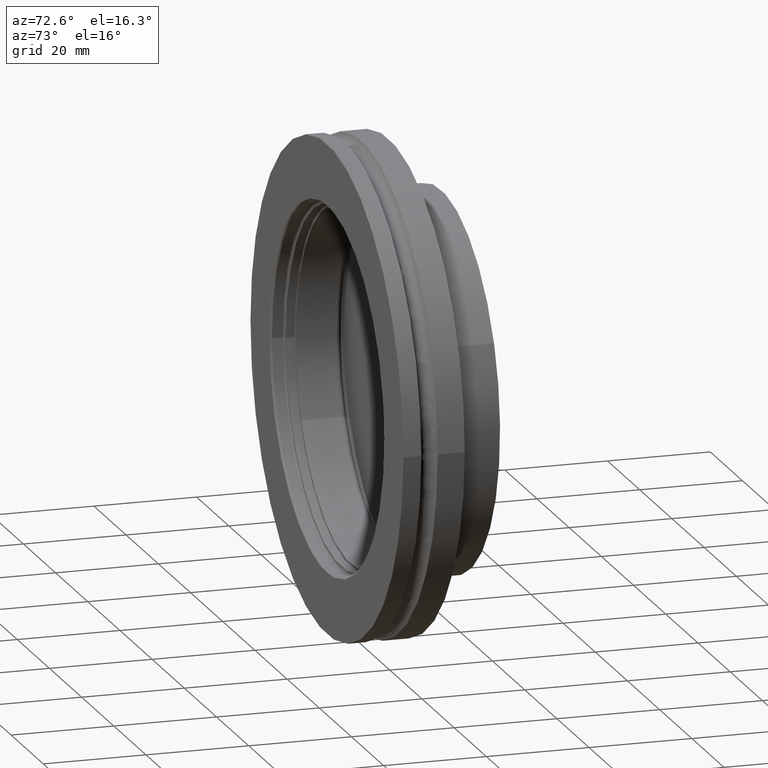
[diagram: clean part render]
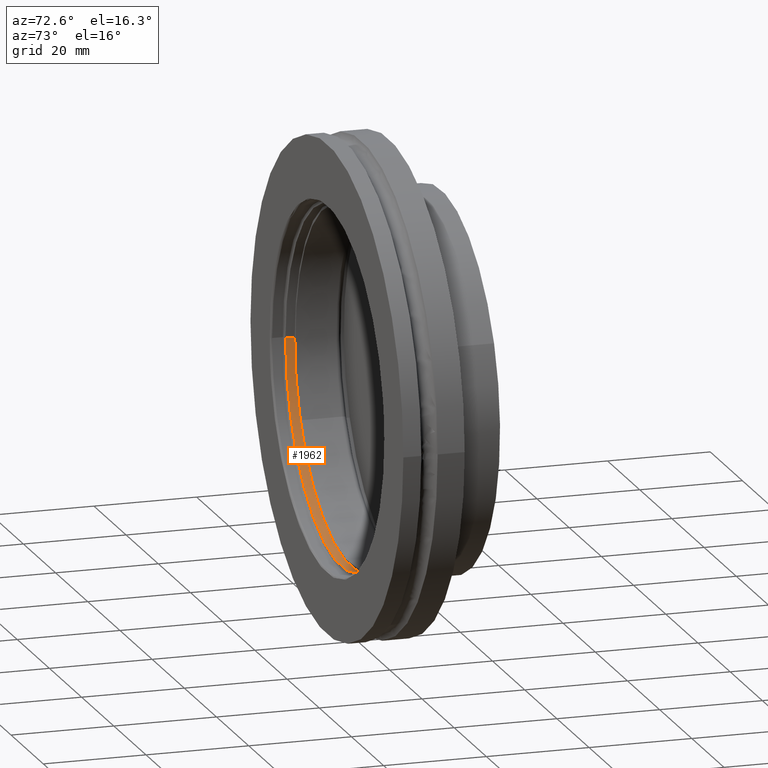
[diagram: same view with one face highlighted and labeled with its STEP entity id]
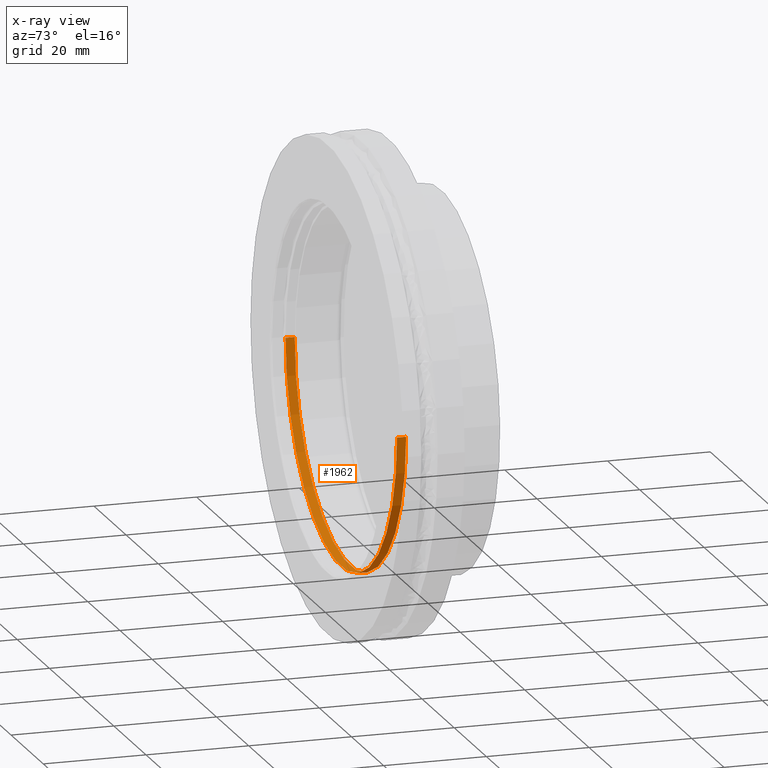
[diagram: x-ray of the same camera — body ghosted, the highlighted face saturated]
A machine part, auxiliary view. The second image highlights one B-rep face of the part: STEP entity #1962.
The next image is the same camera in x-ray: the body ghosted, the highlighted face saturated — about 1% of this face is hidden behind the body in this view.
In plain terms, the highlighted cylindrical surface (partial cylindrical patch) has radius 34.6075 mm, axis along (-0, -1, 0).
Its self-contained STEP definition (entity closure, byte-faithful):
#34 = AXIS2_PLACEMENT_3D ( 'NONE', #1231, #1247, #1248 ) ;
#64 = CYLINDRICAL_SURFACE ( 'NONE', #34, 1.362500000000000000 ) ;
#65 = FACE_OUTER_BOUND ( 'NONE', #500, .T. ) ;
#113 = VERTEX_POINT ( 'NONE', #859 ) ;
#157 = CIRCLE ( 'NONE', #585, 1.362500000000000000 ) ;
#215 = VECTOR ( 'NONE', #1512, 39.37007874015748100 ) ;
#217 = LINE ( 'NONE', #1505, #215 ) ;
#218 = VECTOR ( 'NONE', #1642, 39.37007874015748100 ) ;
#220 = LINE ( 'NONE', #1647, #218 ) ;
#266 = CIRCLE ( 'NONE', #651, 1.362500000000000000 ) ;
#407 = ORIENTED_EDGE ( 'NONE', *, *, #705, .F. ) ;
#408 = ORIENTED_EDGE ( 'NONE', *, *, #641, .F. ) ;
#409 = ORIENTED_EDGE ( 'NONE', *, *, #707, .T. ) ;
#410 = ORIENTED_EDGE ( 'NONE', *, *, #750, .T. ) ;
#500 = EDGE_LOOP ( 'NONE', ( #407, #408, #409, #410 ) ) ;
#585 = AXIS2_PLACEMENT_3D ( 'NONE', #1881, #1880, #1879 ) ;
#641 = EDGE_CURVE ( 'NONE', #113, #2005, #266, .T. ) ;
#651 = AXIS2_PLACEMENT_3D ( 'NONE', #789, #788, #787 ) ;
#705 = EDGE_CURVE ( 'NONE', #2005, #2012, #220, .T. ) ;
#707 = EDGE_CURVE ( 'NONE', #113, #1998, #217, .T. ) ;
#750 = EDGE_CURVE ( 'NONE', #1998, #2012, #157, .T. ) ;
#787 = DIRECTION ( 'NONE',  ( -1.000000000000000000, 1.253141281497368300E-016, 0.0000000000000000000 ) ) ;
#788 = DIRECTION ( 'NONE',  ( -1.224646799147352200E-016, -1.000000000000000000, 0.0000000000000000000 ) ) ;
#789 = CARTESIAN_POINT ( 'NONE',  ( -6.735557395310074900E-018, -0.05499999999999703700, -0.0000000000000000000 ) ) ;
#859 = CARTESIAN_POINT ( 'NONE',  ( -1.362500000000000000, -0.05499999999999687100, 0.0000000000000000000 ) ) ;
#1166 = CARTESIAN_POINT ( 'NONE',  ( 1.362500000000000000, -0.1249999999999972100, -1.668581263838268800E-016 ) ) ;
#1173 = CARTESIAN_POINT ( 'NONE',  ( 1.362500000000000000, -0.05499999999999721100, -1.668581263838268800E-016 ) ) ;
#1180 = CARTESIAN_POINT ( 'NONE',  ( -1.362500000000000000, -0.1249999999999968800, 0.0000000000000000000 ) ) ;
#1231 = CARTESIAN_POINT ( 'NONE',  ( 0.0000000000000000000, 0.0000000000000000000, 0.0000000000000000000 ) ) ;
#1247 = DIRECTION ( 'NONE',  ( -1.224646799147352200E-016, -1.000000000000000000, 0.0000000000000000000 ) ) ;
#1248 = DIRECTION ( 'NONE',  ( -1.000000000000000000, 1.224646799147352200E-016, 0.0000000000000000000 ) ) ;
#1505 = CARTESIAN_POINT ( 'NONE',  ( -1.362500000000000000, 1.668581263838267600E-016, 0.0000000000000000000 ) ) ;
#1512 = DIRECTION ( 'NONE',  ( -1.224646799147352200E-016, -1.000000000000000000, 0.0000000000000000000 ) ) ;
#1642 = DIRECTION ( 'NONE',  ( -1.224646799147352200E-016, -1.000000000000000000, 0.0000000000000000000 ) ) ;
#1647 = CARTESIAN_POINT ( 'NONE',  ( 1.362500000000000000, -1.668581263838267600E-016, -1.668581263838268800E-016 ) ) ;
#1879 = DIRECTION ( 'NONE',  ( -1.000000000000000000, 1.253141281497368300E-016, 0.0000000000000000000 ) ) ;
#1880 = DIRECTION ( 'NONE',  ( -1.224646799147352200E-016, -1.000000000000000000, 0.0000000000000000000 ) ) ;
#1881 = CARTESIAN_POINT ( 'NONE',  ( -1.530808498934154200E-017, -0.1249999999999970400, -0.0000000000000000000 ) ) ;
#1962 = ADVANCED_FACE ( 'NONE', ( #65 ), #64, .F. ) ;
#1998 = VERTEX_POINT ( 'NONE', #1180 ) ;
#2005 = VERTEX_POINT ( 'NONE', #1173 ) ;
#2012 = VERTEX_POINT ( 'NONE', #1166 ) ;